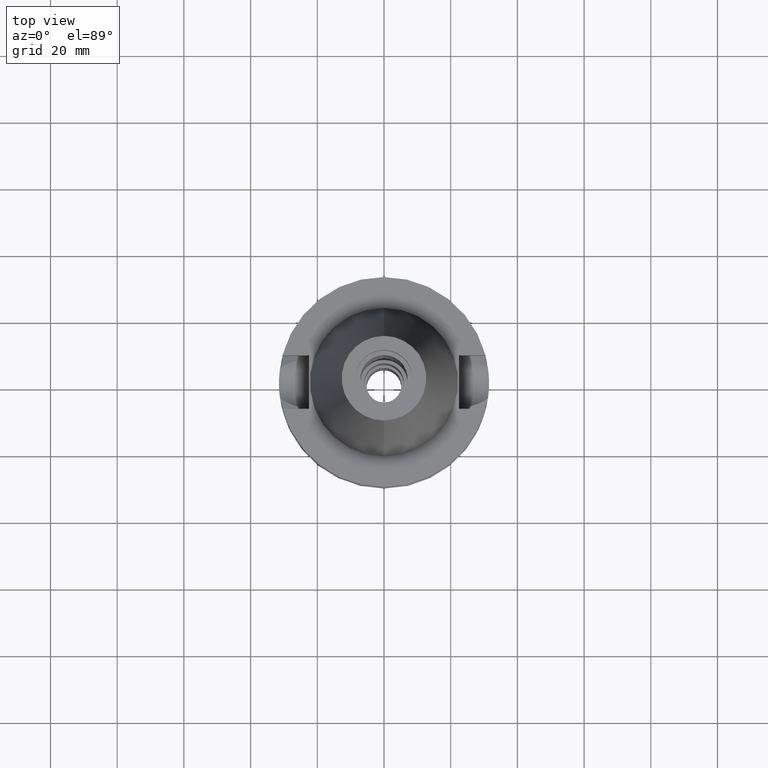
[diagram: clean part render]
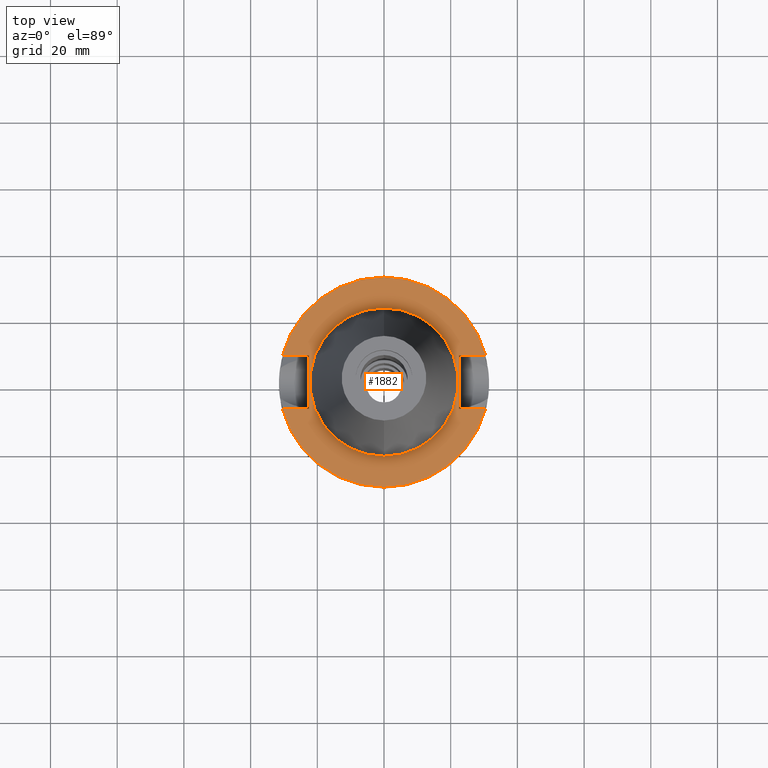
[diagram: same view with one face highlighted and labeled with its STEP entity id]
A machine part, top view. The second image highlights one B-rep face of the part: STEP entity #1882.
In plain terms, the highlighted planar face has unit normal (0, 0, -1).
Its self-contained STEP definition (entity closure, byte-faithful):
#8 = VERTEX_POINT ( 'NONE', #2569 ) ;
#88 = CARTESIAN_POINT ( 'NONE',  ( 0.0000000000000000000, 22.22500000000000142, -2.000000000000000000 ) ) ;
#141 = VERTEX_POINT ( 'NONE', #1700 ) ;
#171 = VERTEX_POINT ( 'NONE', #3461 ) ;
#292 = AXIS2_PLACEMENT_3D ( 'NONE', #2390, #2919, #3526 ) ;
#305 = ORIENTED_EDGE ( 'NONE', *, *, #328, .F. ) ;
#328 = EDGE_CURVE ( 'NONE', #3557, #171, #641, .T. ) ;
#354 = EDGE_CURVE ( 'NONE', #1854, #678, #3556, .T. ) ;
#373 = LINE ( 'NONE', #2864, #3581 ) ;
#391 = DIRECTION ( 'NONE',  ( 0.0000000000000000000, -1.000000000000000000, 0.0000000000000000000 ) ) ;
#409 = CIRCLE ( 'NONE', #2884, 22.22500000000000142 ) ;
#433 = FACE_OUTER_BOUND ( 'NONE', #899, .T. ) ;
#482 = ORIENTED_EDGE ( 'NONE', *, *, #354, .F. ) ;
#544 = VECTOR ( 'NONE', #2372, 1000.000000000000000 ) ;
#566 = DIRECTION ( 'NONE',  ( 0.0000000000000000000, 0.0000000000000000000, -1.000000000000000000 ) ) ;
#627 = VERTEX_POINT ( 'NONE', #2691 ) ;
#641 = CIRCLE ( 'NONE', #931, 31.50000000000000000 ) ;
#678 = VERTEX_POINT ( 'NONE', #2799 ) ;
#760 = EDGE_CURVE ( 'NONE', #141, #1787, #1822, .T. ) ;
#826 = VECTOR ( 'NONE', #2619, 1000.000000000000000 ) ;
#899 = EDGE_LOOP ( 'NONE', ( #2666, #305, #2220, #2871, #2612, #1047, #2018, #482 ) ) ;
#931 = AXIS2_PLACEMENT_3D ( 'NONE', #2687, #1292, #2370 ) ;
#1039 = EDGE_CURVE ( 'NONE', #678, #141, #1380, .T. ) ;
#1047 = ORIENTED_EDGE ( 'NONE', *, *, #760, .F. ) ;
#1053 = VECTOR ( 'NONE', #391, 1000.000000000000000 ) ;
#1095 = DIRECTION ( 'NONE',  ( -1.000000000000000000, -3.550916904668000126E-14, 0.0000000000000000000 ) ) ;
#1127 = VERTEX_POINT ( 'NONE', #88 ) ;
#1208 = LINE ( 'NONE', #1523, #826 ) ;
#1209 = EDGE_CURVE ( 'NONE', #627, #3557, #373, .T. ) ;
#1265 = DIRECTION ( 'NONE',  ( 0.0000000000000000000, 1.000000000000000000, 0.0000000000000000000 ) ) ;
#1292 = DIRECTION ( 'NONE',  ( 0.0000000000000000000, 0.0000000000000000000, -1.000000000000000000 ) ) ;
#1353 = ORIENTED_EDGE ( 'NONE', *, *, #1979, .F. ) ;
#1380 = LINE ( 'NONE', #3623, #2754 ) ;
#1422 = ORIENTED_EDGE ( 'NONE', *, *, #3431, .F. ) ;
#1523 = CARTESIAN_POINT ( 'NONE',  ( 22.50000000000000000, 8.050000000000000711, -2.000000000000000000 ) ) ;
#1541 = CARTESIAN_POINT ( 'NONE',  ( 30.45402272279000044, 8.050000000000000711, -2.000000000000000000 ) ) ;
#1650 = DIRECTION ( 'NONE',  ( 0.0000000000000000000, 0.0000000000000000000, 1.000000000000000000 ) ) ;
#1700 = CARTESIAN_POINT ( 'NONE',  ( -30.45402272279000044, 8.050000000000000711, -2.000000000000000000 ) ) ;
#1701 = VECTOR ( 'NONE', #3283, 1000.000000000000000 ) ;
#1729 = CARTESIAN_POINT ( 'NONE',  ( 22.50000000000000000, 8.050000000000000711, -2.000000000000000000 ) ) ;
#1741 = CARTESIAN_POINT ( 'NONE',  ( 0.0000000000000000000, 2.143989151267000102E-14, -2.000000000000000000 ) ) ;
#1761 = AXIS2_PLACEMENT_3D ( 'NONE', #1741, #566, #3612 ) ;
#1781 = AXIS2_PLACEMENT_3D ( 'NONE', #2094, #1828, #1265 ) ;
#1787 = VERTEX_POINT ( 'NONE', #1541 ) ;
#1796 = EDGE_CURVE ( 'NONE', #2200, #1787, #1208, .T. ) ;
#1822 = CIRCLE ( 'NONE', #1761, 31.50000000000000000 ) ;
#1828 = DIRECTION ( 'NONE',  ( 0.0000000000000000000, 0.0000000000000000000, 1.000000000000000000 ) ) ;
#1854 = VERTEX_POINT ( 'NONE', #2358 ) ;
#1882 = ADVANCED_FACE ( 'NONE', ( #433, #3218 ), #2640, .F. ) ;
#1956 = CIRCLE ( 'NONE', #1781, 22.22500000000000142 ) ;
#1979 = EDGE_CURVE ( 'NONE', #8, #1127, #409, .T. ) ;
#2018 = ORIENTED_EDGE ( 'NONE', *, *, #1039, .F. ) ;
#2094 = CARTESIAN_POINT ( 'NONE',  ( 0.0000000000000000000, 2.143989151267000102E-14, -2.000000000000000000 ) ) ;
#2153 = CARTESIAN_POINT ( 'NONE',  ( -22.50000000000000000, -8.050000000000000711, -2.000000000000000000 ) ) ;
#2170 = CARTESIAN_POINT ( 'NONE',  ( 30.45402272279000044, -8.050000000000000711, -2.000000000000000000 ) ) ;
#2200 = VERTEX_POINT ( 'NONE', #1729 ) ;
#2220 = ORIENTED_EDGE ( 'NONE', *, *, #1209, .F. ) ;
#2315 = EDGE_CURVE ( 'NONE', #2200, #627, #2339, .T. ) ;
#2327 = CARTESIAN_POINT ( 'NONE',  ( -22.50000000000000000, -8.050000000000000711, -2.000000000000000000 ) ) ;
#2339 = LINE ( 'NONE', #2949, #1053 ) ;
#2358 = CARTESIAN_POINT ( 'NONE',  ( -22.50000000000000000, -8.050000000000000711, -2.000000000000000000 ) ) ;
#2370 = DIRECTION ( 'NONE',  ( 0.0000000000000000000, -1.000000000000000000, 0.0000000000000000000 ) ) ;
#2372 = DIRECTION ( 'NONE',  ( -1.000000000000000000, 3.550916904668000126E-14, 0.0000000000000000000 ) ) ;
#2390 = CARTESIAN_POINT ( 'NONE',  ( 0.0000000000000000000, 1.200153863163999924E-14, -2.000000000000000000 ) ) ;
#2410 = CARTESIAN_POINT ( 'NONE',  ( 0.0000000000000000000, 2.143989151267000102E-14, -2.000000000000000000 ) ) ;
#2556 = EDGE_CURVE ( 'NONE', #1854, #171, #3487, .T. ) ;
#2569 = CARTESIAN_POINT ( 'NONE',  ( 0.0000000000000000000, -22.22500000000000142, -2.000000000000000000 ) ) ;
#2612 = ORIENTED_EDGE ( 'NONE', *, *, #1796, .T. ) ;
#2619 = DIRECTION ( 'NONE',  ( 1.000000000000000000, -3.506251283225999947E-14, 0.0000000000000000000 ) ) ;
#2640 = PLANE ( 'NONE',  #292 ) ;
#2666 = ORIENTED_EDGE ( 'NONE', *, *, #2556, .T. ) ;
#2681 = EDGE_LOOP ( 'NONE', ( #1422, #1353 ) ) ;
#2687 = CARTESIAN_POINT ( 'NONE',  ( 0.0000000000000000000, 2.143989151267000102E-14, -2.000000000000000000 ) ) ;
#2691 = CARTESIAN_POINT ( 'NONE',  ( 22.50000000000000000, -8.050000000000000711, -2.000000000000000000 ) ) ;
#2754 = VECTOR ( 'NONE', #1095, 1000.000000000000000 ) ;
#2799 = CARTESIAN_POINT ( 'NONE',  ( -22.50000000000000000, 8.050000000000000711, -2.000000000000000000 ) ) ;
#2864 = CARTESIAN_POINT ( 'NONE',  ( 22.50000000000000000, -8.050000000000000711, -2.000000000000000000 ) ) ;
#2871 = ORIENTED_EDGE ( 'NONE', *, *, #2315, .F. ) ;
#2884 = AXIS2_PLACEMENT_3D ( 'NONE', #2410, #1650, #3327 ) ;
#2919 = DIRECTION ( 'NONE',  ( 0.0000000000000000000, 0.0000000000000000000, -1.000000000000000000 ) ) ;
#2949 = CARTESIAN_POINT ( 'NONE',  ( 22.50000000000000000, 8.050000000000000711, -2.000000000000000000 ) ) ;
#3100 = DIRECTION ( 'NONE',  ( 1.000000000000000000, 3.573249715389999860E-14, 0.0000000000000000000 ) ) ;
#3218 = FACE_BOUND ( 'NONE', #2681, .T. ) ;
#3283 = DIRECTION ( 'NONE',  ( 0.0000000000000000000, 1.000000000000000000, 0.0000000000000000000 ) ) ;
#3327 = DIRECTION ( 'NONE',  ( 0.0000000000000000000, -1.000000000000000000, 0.0000000000000000000 ) ) ;
#3431 = EDGE_CURVE ( 'NONE', #1127, #8, #1956, .T. ) ;
#3461 = CARTESIAN_POINT ( 'NONE',  ( -30.45402272279000044, -8.050000000000000711, -2.000000000000000000 ) ) ;
#3487 = LINE ( 'NONE', #2327, #544 ) ;
#3526 = DIRECTION ( 'NONE',  ( 0.0000000000000000000, -1.000000000000000000, 0.0000000000000000000 ) ) ;
#3556 = LINE ( 'NONE', #2153, #1701 ) ;
#3557 = VERTEX_POINT ( 'NONE', #2170 ) ;
#3581 = VECTOR ( 'NONE', #3100, 1000.000000000000000 ) ;
#3612 = DIRECTION ( 'NONE',  ( 0.0000000000000000000, 1.000000000000000000, 0.0000000000000000000 ) ) ;
#3623 = CARTESIAN_POINT ( 'NONE',  ( -22.50000000000000000, 8.050000000000000711, -2.000000000000000000 ) ) ;